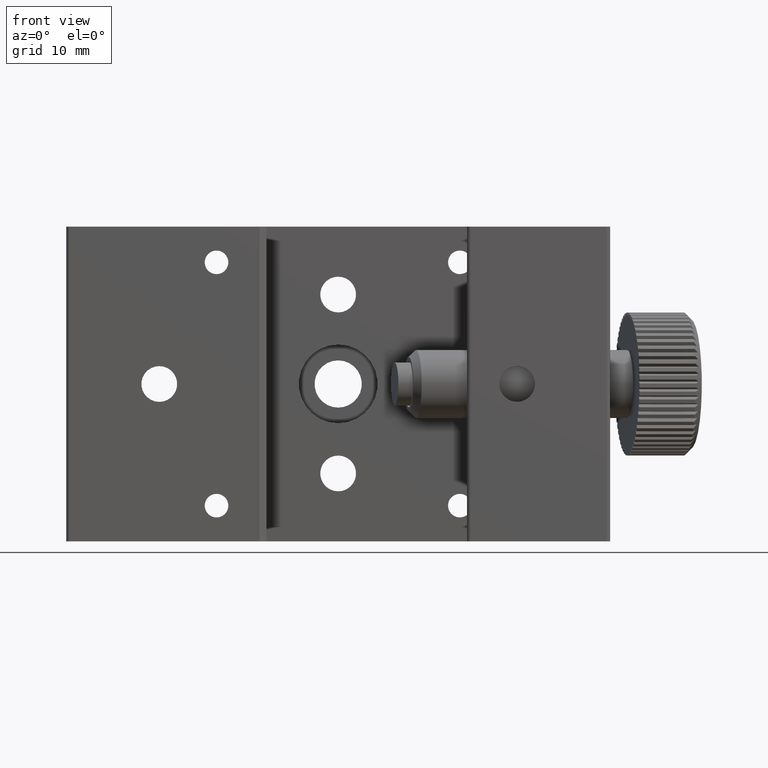
[diagram: clean part render]
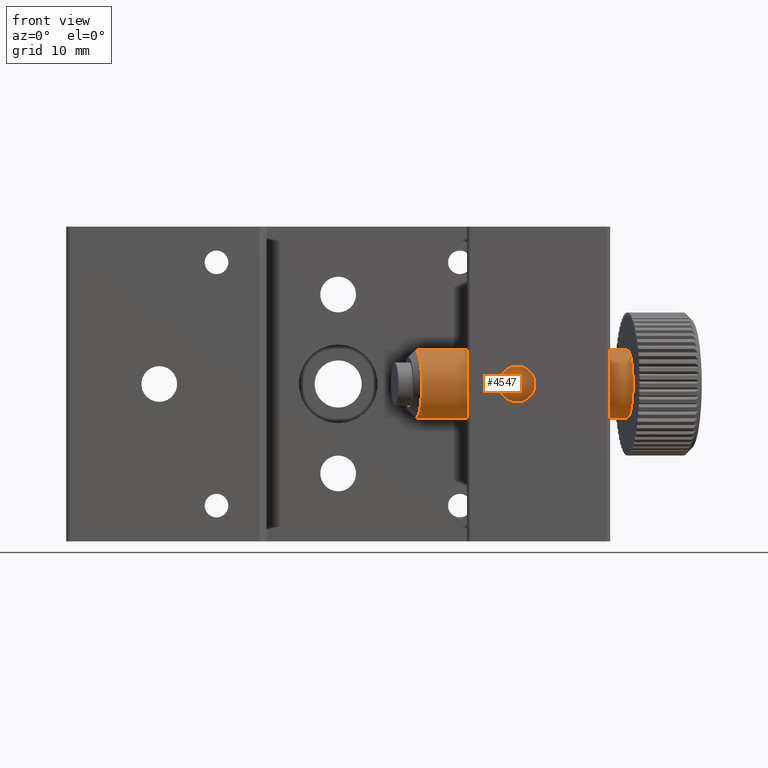
[diagram: same view with one face highlighted and labeled with its STEP entity id]
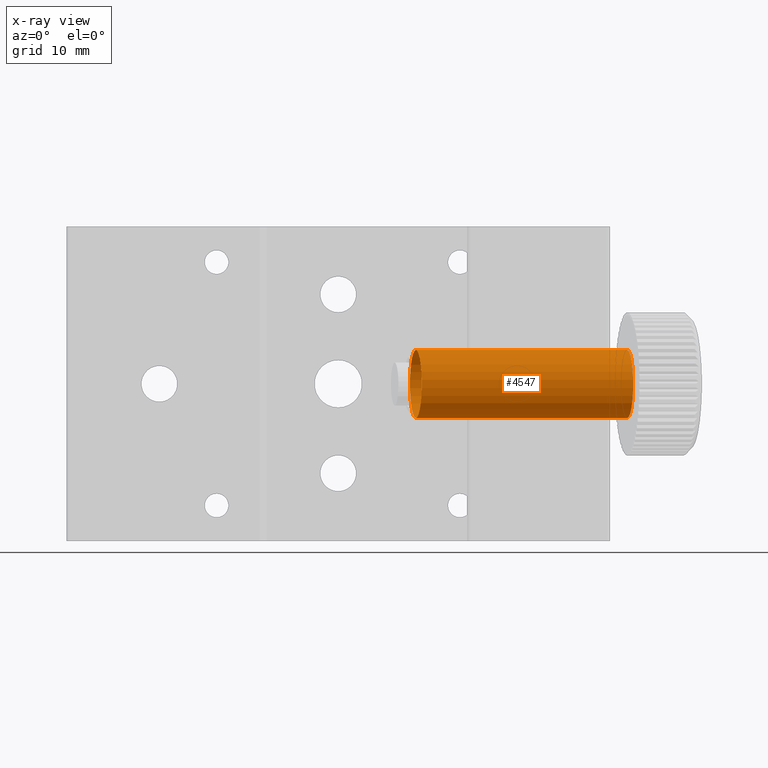
[diagram: x-ray of the same camera — body ghosted, the highlighted face saturated]
A machine part, front view. The second image highlights one B-rep face of the part: STEP entity #4547.
The next image is the same camera in x-ray: the body ghosted, the highlighted face saturated — about 0% of this face is hidden behind the body in this view.
In plain terms, the highlighted cylindrical surface (bore or boss wall) has radius 4.75 mm, axis along (0.9848, 0.1736, -0).
Its self-contained STEP definition (entity closure, byte-faithful):
#119 = FACE_OUTER_BOUND ( 'NONE', #6674, .T. ) ;
#124 = FACE_OUTER_BOUND ( 'NONE', #6577, .T. ) ;
#133 = CYLINDRICAL_SURFACE ( 'NONE', #7139, 4.750000000000002700 ) ;
#1395 = EDGE_CURVE ( 'NONE', #4304, #4304, #1891, .T. ) ;
#1396 = EDGE_CURVE ( 'NONE', #4305, #4305, #1892, .T. ) ;
#1891 = CIRCLE ( 'NONE', #3365, 4.750000000000002700 ) ;
#1892 = CIRCLE ( 'NONE', #3366, 4.750000000000003600 ) ;
#2279 = ORIENTED_EDGE ( 'NONE', *, *, #1395, .T. ) ;
#2280 = ORIENTED_EDGE ( 'NONE', *, *, #1396, .F. ) ;
#2649 = DIRECTION ( 'NONE',  ( -0.08075233213996069200, 0.4579692331570833800, 0.8852927438624301800 ) ) ;
#2650 = CARTESIAN_POINT ( 'NONE',  ( 26.53292953627552800, 1.063297581920869400, 7.737838482048272400E-015 ) ) ;
#2651 = DIRECTION ( 'NONE',  ( 0.9848077530122074700, 0.1736481776669335000, -1.945692431741474800E-016 ) ) ;
#3365 = AXIS2_PLACEMENT_3D ( 'NONE', #3831, #3832, #3833 ) ;
#3366 = AXIS2_PLACEMENT_3D ( 'NONE', #3835, #3836, #3837 ) ;
#3831 = CARTESIAN_POINT ( 'NONE',  ( -11.87457283120055400, -5.708981347089536300, 1.532603896584002200E-014 ) ) ;
#3832 = DIRECTION ( 'NONE',  ( 0.9848077530122076900, 0.1736481776669335200, -1.945692431741473800E-016 ) ) ;
#3833 = DIRECTION ( 'NONE',  ( 0.08075233213996069200, -0.4579692331570832700, -0.8852927438624301800 ) ) ;
#3835 = CARTESIAN_POINT ( 'NONE',  ( 17.66965975916565800, -0.4995360170815333300, 9.488961670615600200E-015 ) ) ;
#3836 = DIRECTION ( 'NONE',  ( 0.9848077530122076900, 0.1736481776669335200, -1.945692431741475300E-016 ) ) ;
#3837 = DIRECTION ( 'NONE',  ( -0.08075233213996067800, 0.4579692331570833800, 0.8852927438624301800 ) ) ;
#4304 = VERTEX_POINT ( 'NONE', #5350 ) ;
#4305 = VERTEX_POINT ( 'NONE', #5351 ) ;
#4547 = ADVANCED_FACE ( 'NONE', ( #119, #124 ), #133, .T. ) ;
#5350 = CARTESIAN_POINT ( 'NONE',  ( -11.49099925353574000, -7.884335204585682700, -4.205140533346529700 ) ) ;
#5351 = CARTESIAN_POINT ( 'NONE',  ( 17.28608618150084600, 1.675817840414614200, 4.205140533346555500 ) ) ;
#6577 = EDGE_LOOP ( 'NONE', ( #2280 ) ) ;
#6674 = EDGE_LOOP ( 'NONE', ( #2279 ) ) ;
#7139 = AXIS2_PLACEMENT_3D ( 'NONE', #2650, #2651, #2649 ) ;